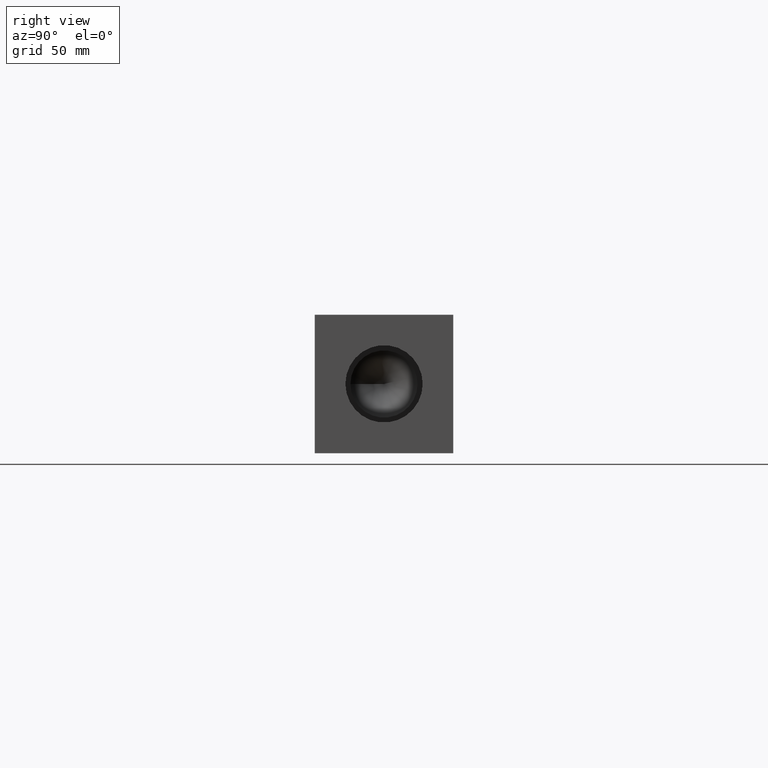
[diagram: clean part render]
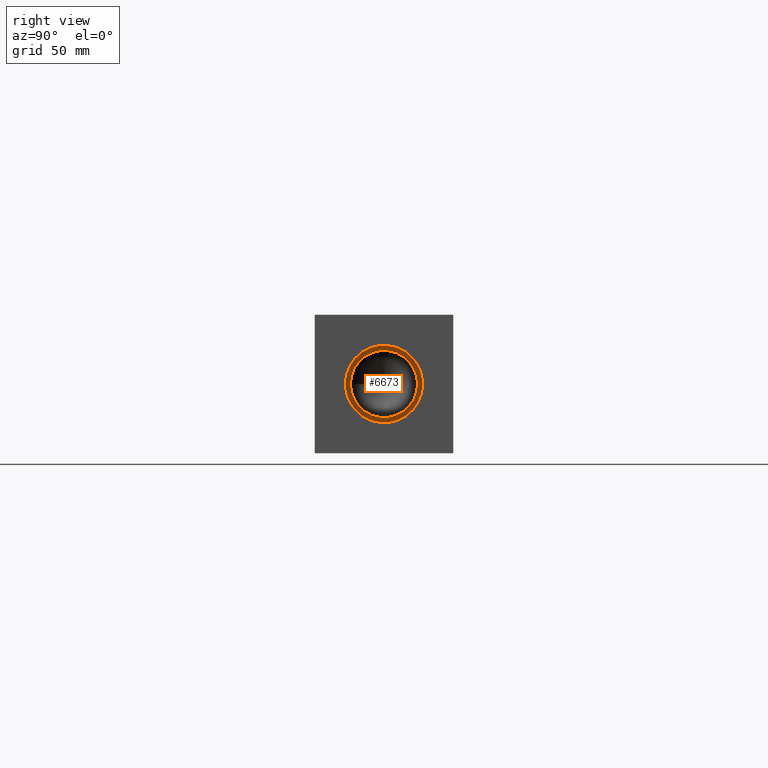
[diagram: same view with one face highlighted and labeled with its STEP entity id]
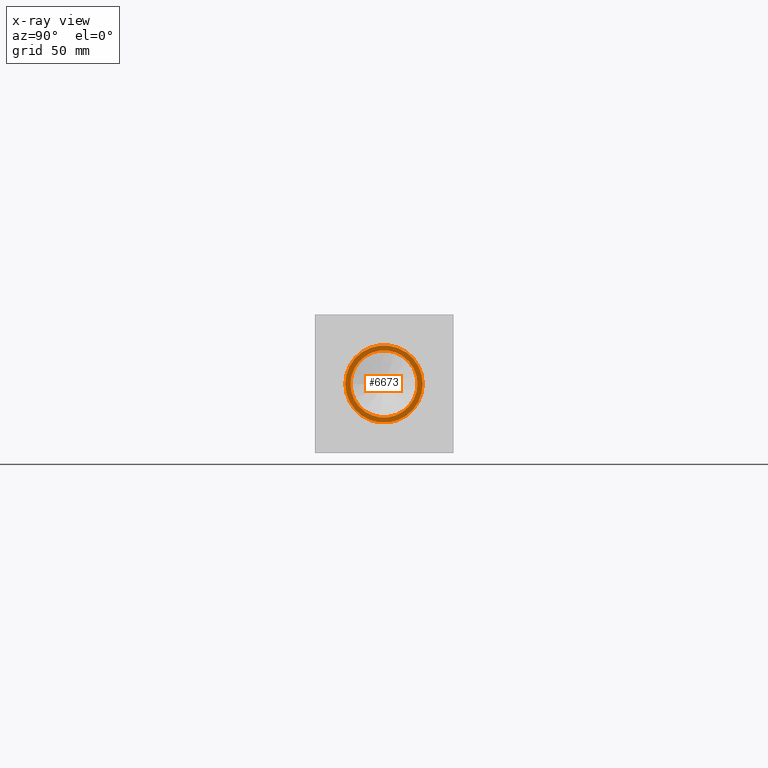
[diagram: x-ray of the same camera — body ghosted, the highlighted face saturated]
A machine part, right view. The second image highlights one B-rep face of the part: STEP entity #6673.
The next image is the same camera in x-ray: the body ghosted, the highlighted face saturated — about 0% of this face is hidden behind the body in this view.
In plain terms, the highlighted planar face has unit normal (1, 0, 0).
Its self-contained STEP definition (entity closure, byte-faithful):
#68=CIRCLE('',#6970,21.2344);
#69=CIRCLE('',#6971,21.2344);
#70=CIRCLE('',#6972,18.4531);
#137=FACE_BOUND('',#1060,.T.);
#367=PLANE('',#6969);
#686=FACE_OUTER_BOUND('',#1059,.T.);
#1059=EDGE_LOOP('',(#5842,#5843));
#1060=EDGE_LOOP('',(#5844));
#3209=VERTEX_POINT('',#11175);
#3210=VERTEX_POINT('',#11176);
#3211=VERTEX_POINT('',#11179);
#4104=EDGE_CURVE('',#3209,#3210,#68,.T.);
#4105=EDGE_CURVE('',#3210,#3209,#69,.T.);
#4106=EDGE_CURVE('',#3211,#3211,#70,.T.);
#5842=ORIENTED_EDGE('',*,*,#4104,.T.);
#5843=ORIENTED_EDGE('',*,*,#4105,.T.);
#5844=ORIENTED_EDGE('',*,*,#4106,.F.);
#6673=ADVANCED_FACE('',(#686,#137),#367,.T.);
#6969=AXIS2_PLACEMENT_3D('',#11174,#8194,#8195);
#6970=AXIS2_PLACEMENT_3D('',#11177,#8196,#8197);
#6971=AXIS2_PLACEMENT_3D('',#11178,#8198,#8199);
#6972=AXIS2_PLACEMENT_3D('',#11180,#8200,#8201);
#8194=DIRECTION('center_axis',(1.,0.,0.));
#8195=DIRECTION('ref_axis',(0.,1.,0.));
#8196=DIRECTION('center_axis',(1.,0.,0.));
#8197=DIRECTION('ref_axis',(0.,1.,0.));
#8198=DIRECTION('center_axis',(1.,0.,0.));
#8199=DIRECTION('ref_axis',(0.,1.,0.));
#8200=DIRECTION('center_axis',(1.,0.,0.));
#8201=DIRECTION('ref_axis',(0.,1.,0.));
#11174=CARTESIAN_POINT('Origin',(367.8428,38.1,38.1));
#11175=CARTESIAN_POINT('',(367.8428,59.3344,38.1));
#11176=CARTESIAN_POINT('',(367.8428,16.8656,38.1));
#11177=CARTESIAN_POINT('Origin',(367.8428,38.1,38.1));
#11178=CARTESIAN_POINT('Origin',(367.8428,38.1,38.1));
#11179=CARTESIAN_POINT('',(367.8428,19.6469,38.1));
#11180=CARTESIAN_POINT('Origin',(367.8428,38.1,38.1));